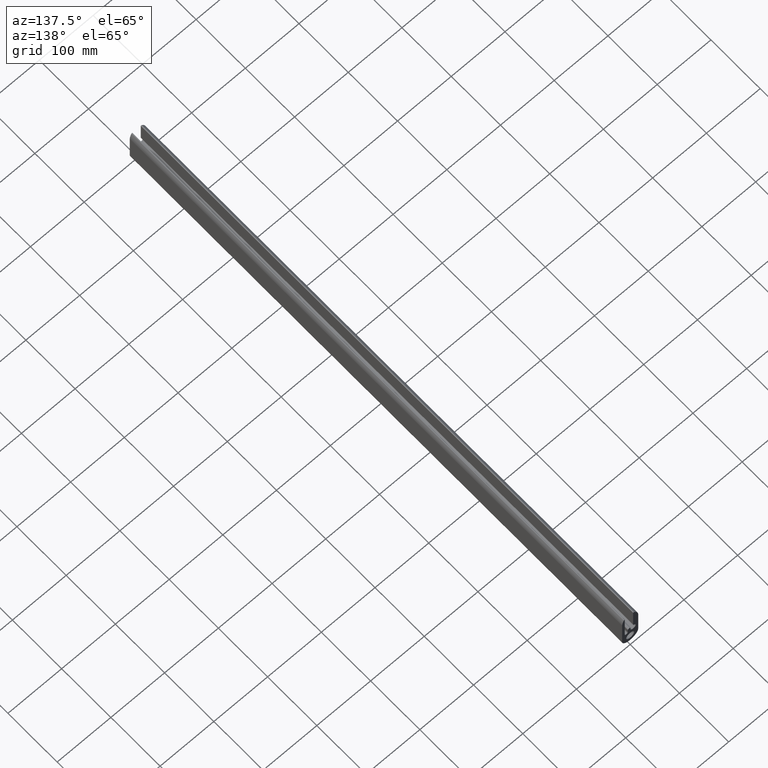
[diagram: clean part render]
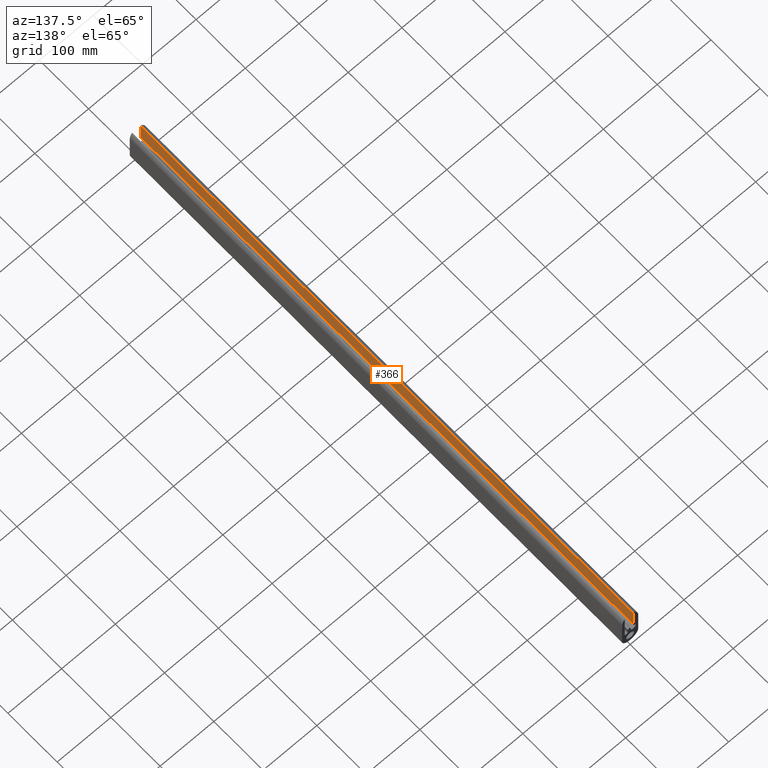
[diagram: same view with one face highlighted and labeled with its STEP entity id]
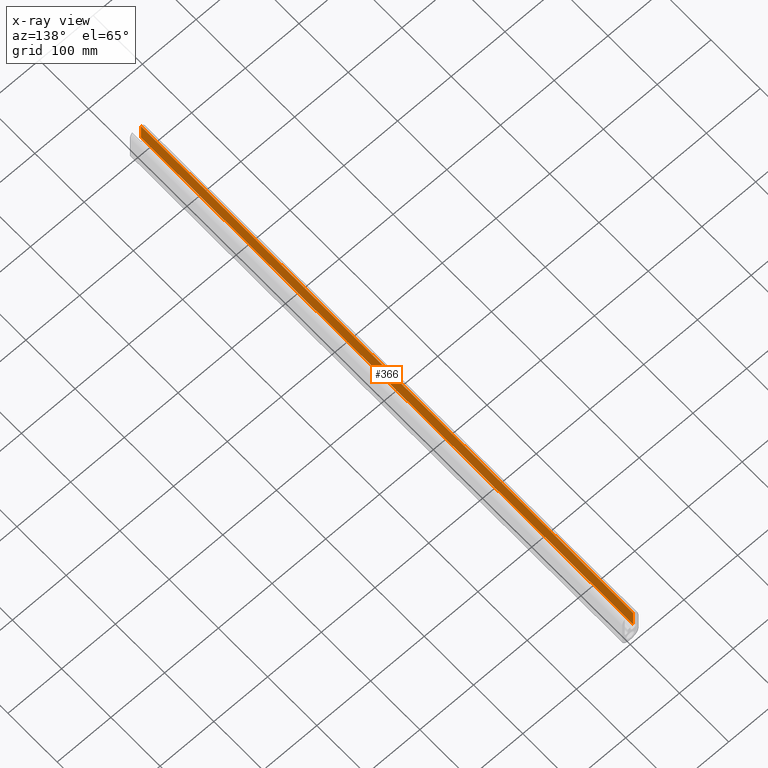
[diagram: x-ray of the same camera — body ghosted, the highlighted face saturated]
A machine part, auxiliary view. The second image highlights one B-rep face of the part: STEP entity #366.
The next image is the same camera in x-ray: the body ghosted, the highlighted face saturated — about 0% of this face is hidden behind the body in this view.
In plain terms, the highlighted planar face has unit normal (1, 0, 0).
Its self-contained STEP definition (entity closure, byte-faithful):
#17=PLANE('',#412);
#29=FACE_OUTER_BOUND('',#49,.T.);
#49=EDGE_LOOP('',(#256,#257,#258,#259));
#71=LINE('',#584,#103);
#72=LINE('',#587,#104);
#73=LINE('',#589,#105);
#74=LINE('',#590,#106);
#103=VECTOR('',#468,10.);
#104=VECTOR('',#471,10.);
#105=VECTOR('',#472,10.);
#106=VECTOR('',#473,10.);
#160=VERTEX_POINT('',#580);
#161=VERTEX_POINT('',#582);
#162=VERTEX_POINT('',#586);
#163=VERTEX_POINT('',#588);
#199=EDGE_CURVE('',#160,#161,#71,.T.);
#200=EDGE_CURVE('',#162,#160,#72,.T.);
#201=EDGE_CURVE('',#163,#161,#73,.T.);
#202=EDGE_CURVE('',#162,#163,#74,.T.);
#256=ORIENTED_EDGE('',*,*,#200,.T.);
#257=ORIENTED_EDGE('',*,*,#199,.T.);
#258=ORIENTED_EDGE('',*,*,#201,.F.);
#259=ORIENTED_EDGE('',*,*,#202,.F.);
#366=ADVANCED_FACE('',(#29),#17,.T.);
#412=AXIS2_PLACEMENT_3D('',#585,#469,#470);
#468=DIRECTION('',(0.,1.,0.));
#469=DIRECTION('center_axis',(1.,0.,0.));
#470=DIRECTION('ref_axis',(0.,0.,-1.));
#471=DIRECTION('',(0.,0.,-1.));
#472=DIRECTION('',(0.,0.,-1.));
#473=DIRECTION('',(0.,1.,0.));
#580=CARTESIAN_POINT('',(-5.49999999999999,0.,27.0622577482985));
#582=CARTESIAN_POINT('',(-5.49999999999999,1000.,27.0622577482985));
#584=CARTESIAN_POINT('',(-5.49999999999999,0.,27.0622577482985));
#585=CARTESIAN_POINT('Origin',(-5.49999999999999,0.,64.));
#586=CARTESIAN_POINT('',(-5.49999999999999,0.,64.));
#587=CARTESIAN_POINT('',(-5.49999999999999,0.,64.));
#588=CARTESIAN_POINT('',(-5.49999999999999,1000.,64.));
#589=CARTESIAN_POINT('',(-5.49999999999999,1000.,64.));
#590=CARTESIAN_POINT('',(-5.49999999999999,0.,64.));